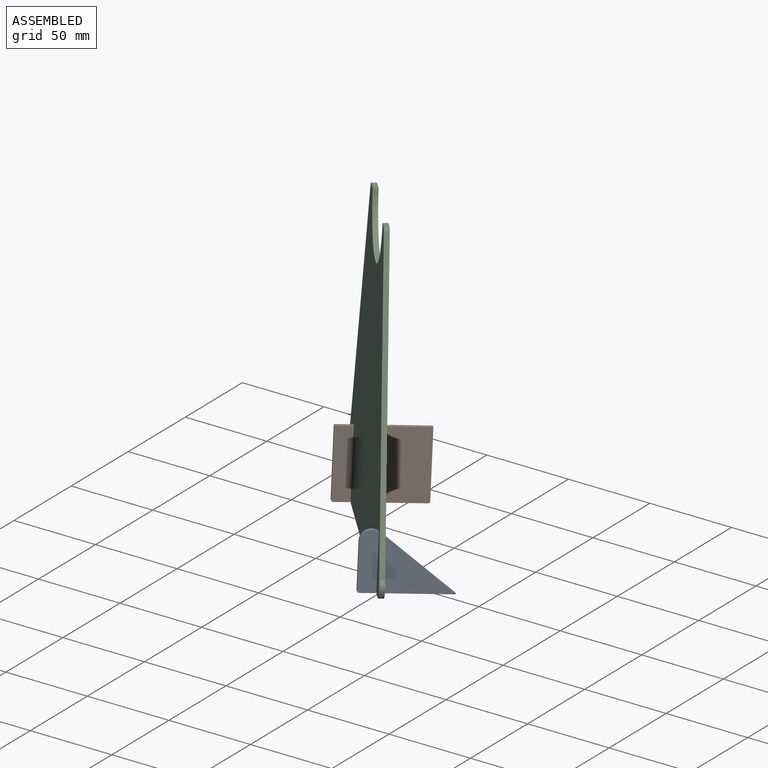
[diagram: assembled view]
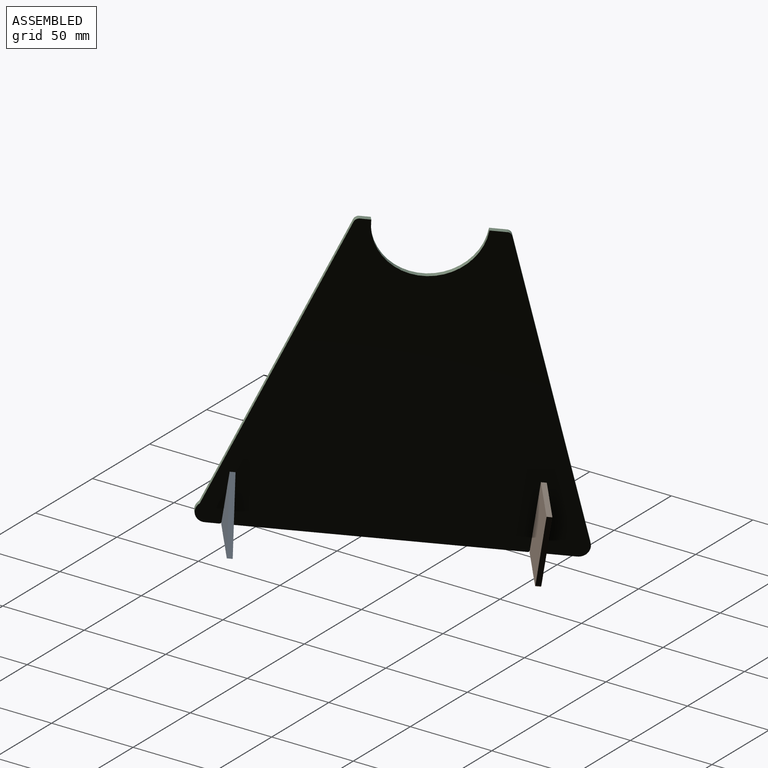
[diagram: assembled view, second angle]
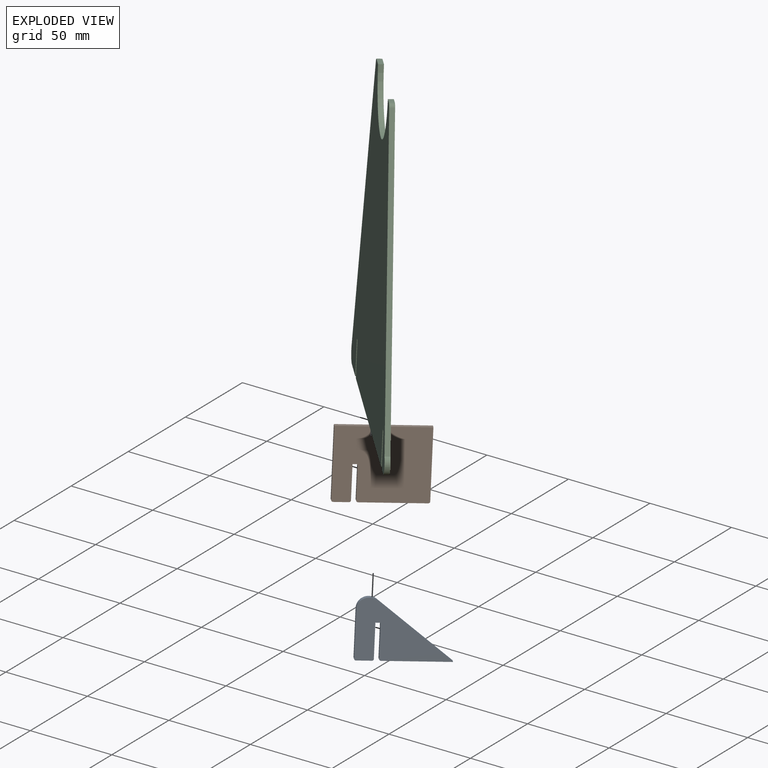
[diagram: exploded view]
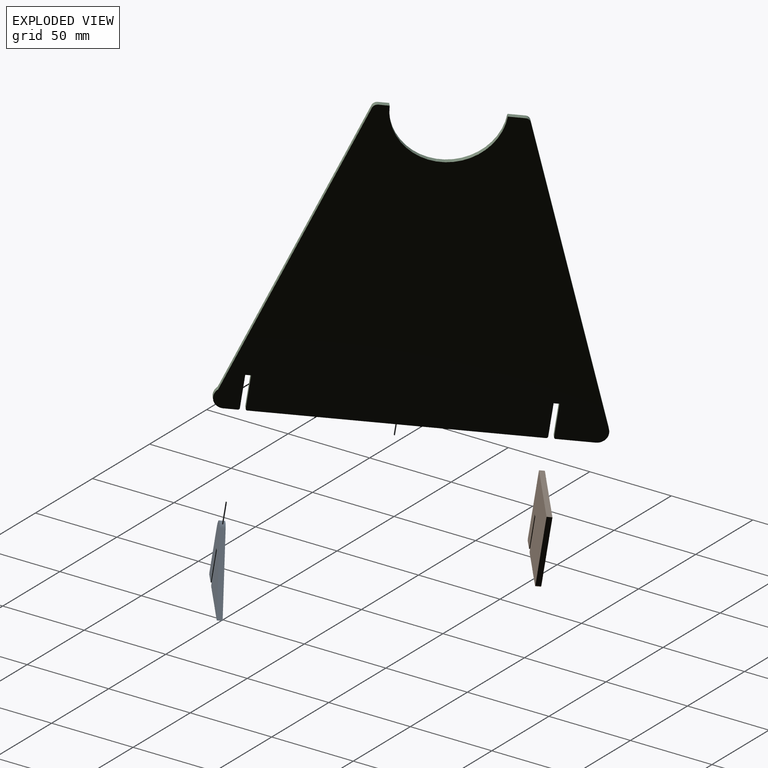
[diagram: exploded view, second angle]
ASSEMBLY  parts=3 mates=2
PART A: 13 faces, bbox 50x33.1x3 mm
  f0: plane 8x3mm, normal (0,-1,0), area 24mm2, adj f1,f10,f11,f12
  f1: cylinder r=1mm len=3mm, axis (0,0,-1), area 4.7mm2, adj f0,f2,f11,f12
  f2: plane 19x3mm, normal (1,0,0), area 57mm2, adj f1,f3,f11,f12
  f3: plane 3x2.6mm, normal (0,-1,0), area 7.8mm2, adj f2,f4,f11,f12
  f4: plane 19x3mm, normal (-1,0,0), area 57mm2, adj f3,f5,f11,f12
  f5: cylinder r=1mm len=3mm, axis (0,0,-1), area 4.7mm2, adj f4,f6,f11,f12
  f6: plane 36.4x3mm, normal (0,-1,0), area 109.2mm2, adj f5,f7,f11,f12
  f7: plane 39.68x31.75mm, normal (0.62,0.78,0), area 152.5mm2, adj f6,f8,f11,f12
  f8: cylinder r=6.35mm len=10.32mm, axis (0,0,-1), area 42.8mm2, adj f7,f9,f11,f12
  f9: plane 25.79x3mm, normal (-1,0,0), area 77.4mm2, adj f8,f10,f11,f12
  f10: cylinder r=1mm len=3mm, axis (0,0,-1), area 4.7mm2, adj f0,f9,f11,f12
  f11: plane 50x33.14mm, normal (0,0,1), area 908.7mm2, adj f0,f1,f2,f3,f4,f5,f6,f7
  f12: plane 50x33.14mm, normal (0,0,-1), area 908.7mm2, adj f0,f1,f2,f3,f4,f5,f6,f7
PART B: 14 faces, bbox 50x40x3 mm
  f0: cylinder r=1mm len=3mm, axis (0,0,-1), area 4.7mm2, adj f1,f11,f12,f13
  f1: plane 8x3mm, normal (0,-1,0), area 24mm2, adj f0,f2,f12,f13
  f2: cylinder r=1mm len=3mm, axis (0,0,-1), area 4.7mm2, adj f1,f3,f12,f13
  f3: plane 19x3mm, normal (1,0,0), area 57mm2, adj f2,f4,f12,f13
  f4: plane 3x2.6mm, normal (0,-1,0), area 7.8mm2, adj f3,f5,f12,f13
  f5: plane 19x3mm, normal (-1,0,0), area 57mm2, adj f4,f6,f12,f13
  f6: cylinder r=1mm len=3mm, axis (0,0,-1), area 4.7mm2, adj f5,f7,f12,f13
  f7: plane 35.4x3mm, normal (0,-1,0), area 106.2mm2, adj f6,f8,f12,f13
  f8: cylinder r=1mm len=3mm, axis (0,0,-1), area 4.7mm2, adj f7,f9,f12,f13
  f9: plane 39x3mm, normal (1,0,0), area 117mm2, adj f8,f10,f12,f13
  f10: plane 50x3mm, normal (0,1,0), area 150mm2, adj f9,f11,f12,f13
  f11: plane 39x3mm, normal (-1,0,0), area 117mm2, adj f0,f10,f12,f13
  f12: plane 50x40mm, normal (0,0,1), area 1947.1mm2, adj f0,f1,f2,f3,f4,f5,f6,f7
  f13: plane 50x40mm, normal (0,0,-1), area 1947.1mm2, adj f0,f1,f2,f3,f4,f5,f6,f7
PART C: 24 faces, bbox 201.6x179.1x3 mm
  f0: cylinder r=1mm len=3mm, axis (0,0,-1), area 4.7mm2, adj f1,f21,f22,f23
  f1: plane 152x3mm, normal (0,-1,0), area 456mm2, adj f0,f2,f22,f23
  f2: cylinder r=1mm len=3mm, axis (0,0,-1), area 4.7mm2, adj f1,f3,f22,f23
  f3: plane 19x3mm, normal (1,0,0), area 57mm2, adj f2,f4,f22,f23
  f4: plane 3x3mm, normal (0,-1,0), area 9mm2, adj f3,f5,f22,f23
  f5: plane 19x3mm, normal (-1,0,0), area 57mm2, adj f4,f6,f22,f23
  f6: cylinder r=1mm len=3mm, axis (0,0,-1), area 4.7mm2, adj f5,f7,f22,f23
  f7: plane 20.22x3mm, normal (0,-1,0), area 60.7mm2, adj f6,f8,f22,f23
  f8: cylinder r=6mm len=8.13mm, axis (0,0,-1), area 35mm2, adj f7,f9,f22,f23
  f9: plane 169x64.25mm, normal (0.93,0.36,0), area 542.4mm2, adj f8,f10,f22,f23
  f10: cylinder r=3mm len=3mm, axis (0,0,-1), area 10.9mm2, adj f9,f11,f22,f23
  f11: plane 9.12x3mm, normal (0,1,0), area 27.3mm2, adj f10,f12,f22,f23
  f12: cylinder r=30.12mm len=60.2mm, axis (0,0,-1), area 277.5mm2, adj f11,f13,f22,f23
  f13: plane 5.86x3mm, normal (0,1,0), area 17.6mm2, adj f12,f14,f22,f23
  f14: cylinder r=3mm len=3mm, axis (0,0,-1), area 11.3mm2, adj f13,f15,f22,f23
  f15: plane 166.58x54.22mm, normal (-0.95,0.31,0), area 525.6mm2, adj f14,f16,f22,f23
  f16: cylinder r=6mm len=10.41mm, axis (0,0,-1), area 43.1mm2, adj f15,f17,f22,f23
  f17: plane 7.33x3mm, normal (0,-1,0), area 22mm2, adj f16,f18,f22,f23
  f18: cylinder r=1mm len=3mm, axis (0,0,-1), area 4.7mm2, adj f17,f19,f22,f23
  f19: plane 19x3mm, normal (1,0,0), area 57mm2, adj f18,f20,f22,f23
  f20: plane 3x3mm, normal (0,-1,0), area 9mm2, adj f19,f21,f22,f23
  f21: plane 19x3mm, normal (-1,0,0), area 57mm2, adj f0,f20,f22,f23
  f22: plane 201.63x179.06mm, normal (0,0,1), area 24025.9mm2, adj f0,f1,f2,f3,f4,f5,f6,f7
  f23: plane 201.63x179.06mm, normal (0,0,-1), area 24025.9mm2, adj f0,f1,f2,f3,f4,f5,f6,f7
PLACE A rot(axis=(0.88,0.34,0.34),88.5deg) t=(-31.73,-128.01,-89.03)mm
PLACE B rot(axis=(0.88,0.34,0.34),88.5deg) t=(-141.43,-5.11,-45.55)mm
PLACE C rot(axis=(0.28,0.72,0.64),140.6deg) t=(-4.8,15.31,18.95)mm
MATE fastened C.f4 <-> B.f4  axis (0.05,-0.14,-0.99) through (-47.82,59.83,-106)mm
MATE fastened C.f20 <-> A.f3  axis (0.05,-0.14,-0.99) through (51.67,-59.65,-84.19)mm
